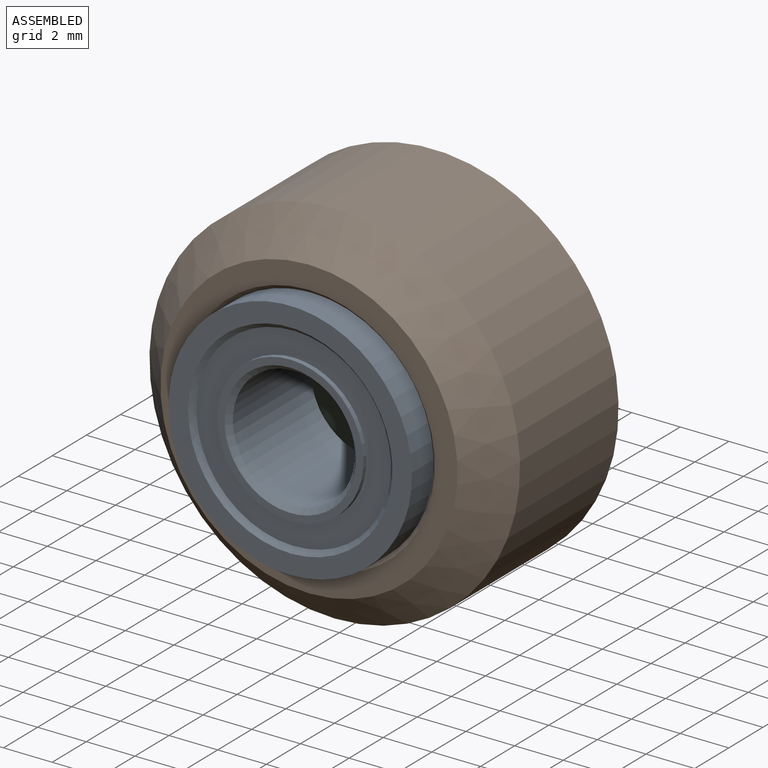
[diagram: assembled view]
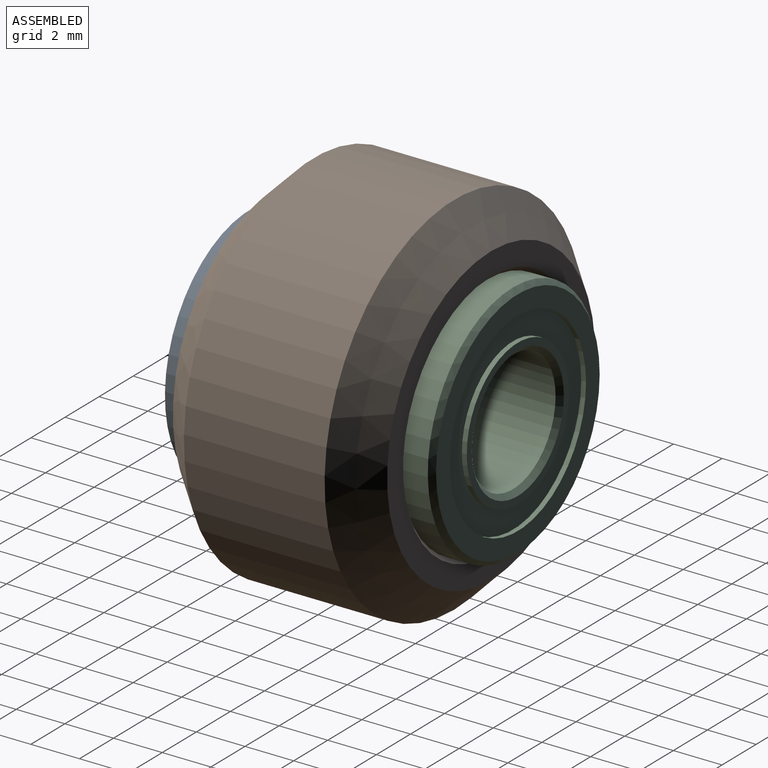
[diagram: assembled view, second angle]
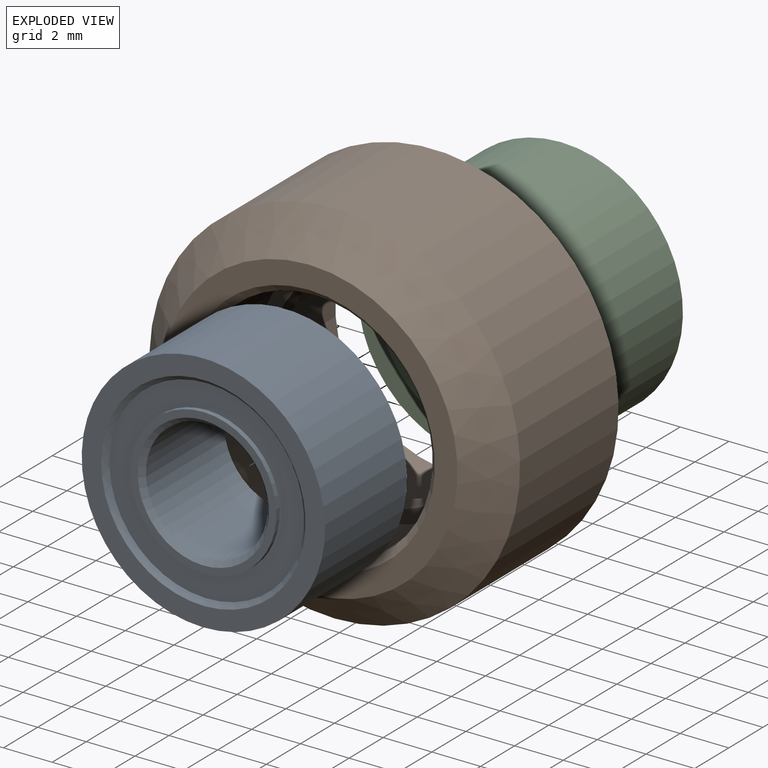
[diagram: exploded view]
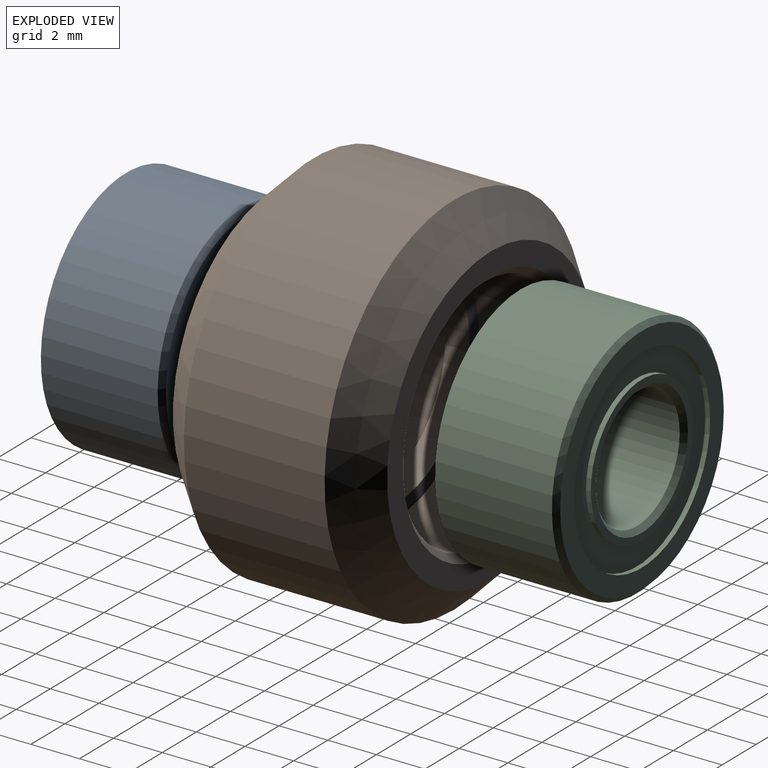
[diagram: exploded view, second angle]
ASSEMBLY  parts=3 mates=2
PART A: 15 faces, bbox 5x10x10 mm
  f0: plane 9.6x9.6mm, normal (-1,0,0), area 22.1mm2, adj f9,f14
  f1: plane 6x6mm, normal (1,0,0), area 5.4mm2, adj f7,f12
  f2: cylinder r=5mm len=10mm, axis (-1,0,0), area 150.8mm2, adj f3,f14
  f3: plane 10x10mm, normal (1,0,0), area 23.1mm2, adj f2,f11
  f4: plane 6x6mm, normal (-1,0,0), area 5.4mm2, adj f10,f13
  f5: cylinder r=2.5mm len=5mm, axis (1,0,0), area 72.3mm2, adj f12,f13
  f6: plane 8x8mm, normal (1,0,0), area 22mm2, adj f7,f11
  f7: cylinder r=3mm len=6mm, axis (1,0,0), area 3.8mm2, adj f1,f6
  f8: plane 8x8mm, normal (-1,0,0), area 22mm2, adj f9,f10
  f9: cylinder r=4mm len=8mm, axis (-1,0,0), area 5mm2, adj f0,f8
  f10: cylinder r=3mm len=6mm, axis (-1,0,0), area 3.8mm2, adj f4,f8
  f11: cone r=4mm half-angle=45deg, axis (1,0,0), area 7.3mm2, adj f3,f6
  f12: cone r=2.5mm half-angle=45deg, axis (1,0,0), area 4.6mm2, adj f1,f5
  f13: cone r=2.7mm half-angle=45deg, axis (-1,0,0), area 4.6mm2, adj f4,f5
  f14: cone r=5mm half-angle=45deg, axis (1,0,0), area 8.7mm2, adj f0,f2
PART B: 12 faces, bbox 15.2x15.2x8.8 mm
  f0: cylinder r=7.62mm len=15.23mm, axis (0,0,1), area 276.6mm2, adj f1,f9
  f1: cone r=7.62mm half-angle=45deg, axis (0,0,-1), area 92mm2, adj f0,f2
  f2: plane 12.21x12.21mm, normal (0,0,1), area 33.1mm2, adj f1,f11
  f3: cylinder r=4.87mm len=9.74mm, axis (0,0,1), area 110.2mm2, adj f4,f11
  f4: plane 9.74x9.74mm, normal (0,0,1), area 15.9mm2, adj f3,f5
  f5: cylinder r=4.32mm len=8.64mm, axis (0,0,1), area 27.1mm2, adj f4,f6
  f6: plane 9.74x9.74mm, normal (0,0,-1), area 15.9mm2, adj f5,f7
  f7: cylinder r=4.87mm len=9.74mm, axis (0,0,1), area 110.2mm2, adj f6,f10
  f8: plane 12.21x12.21mm, normal (0,0,-1), area 33.1mm2, adj f9,f10
  f9: cone r=6.11mm half-angle=45deg, axis (0,0,1), area 92mm2, adj f0,f8
  f10: cone r=5.17mm half-angle=45deg, axis (0,0,-1), area 13.4mm2, adj f7,f8
  f11: cone r=4.87mm half-angle=45deg, axis (0,0,1), area 13.4mm2, adj f2,f3
PART C: same geometry as A
PLACE A rot(axis=(0.53,-0.53,-0.67),112.4deg) t=(25.67,16.08,71.87)mm
PLACE B rot(axis=(0.58,0.58,-0.58),120deg) t=(25.67,19.08,71.87)mm
PLACE C rot(axis=(0.04,-0.04,-1),90.1deg) t=(25.67,22.08,71.87)mm
MATE revolute A.f2 <-> B.f0  axis (0,1,0) through (25.67,18.58,71.87)mm
MATE revolute C.f2 <-> B.f0  axis (0,-1,0) through (25.67,19.58,71.87)mm
